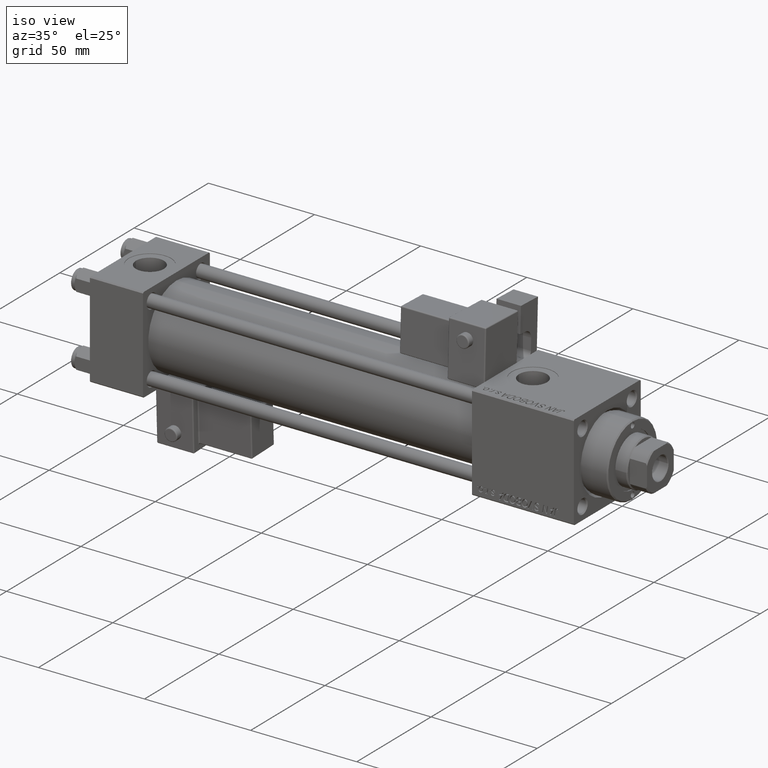
[diagram: clean part render]
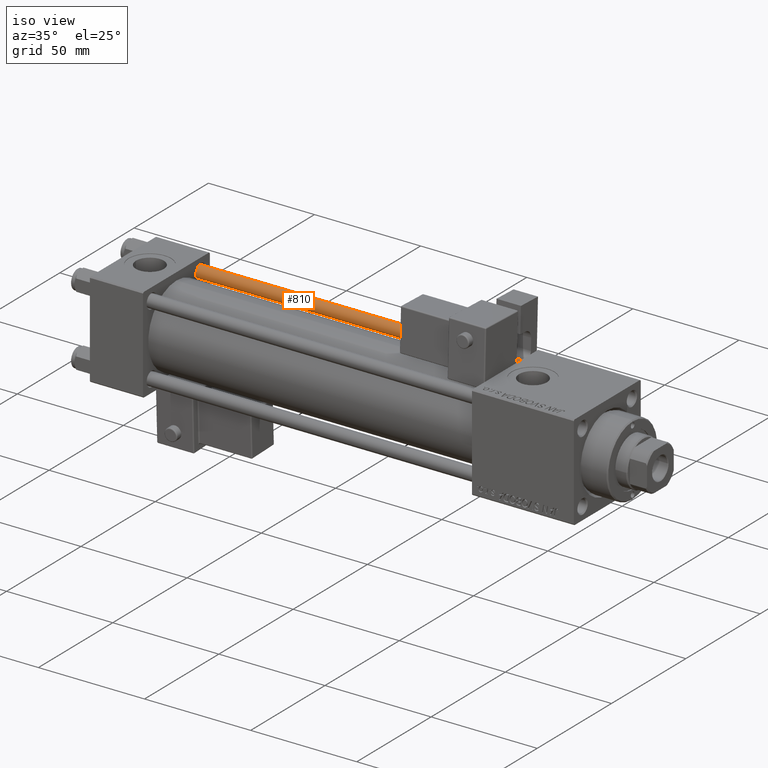
[diagram: same view with one face highlighted and labeled with its STEP entity id]
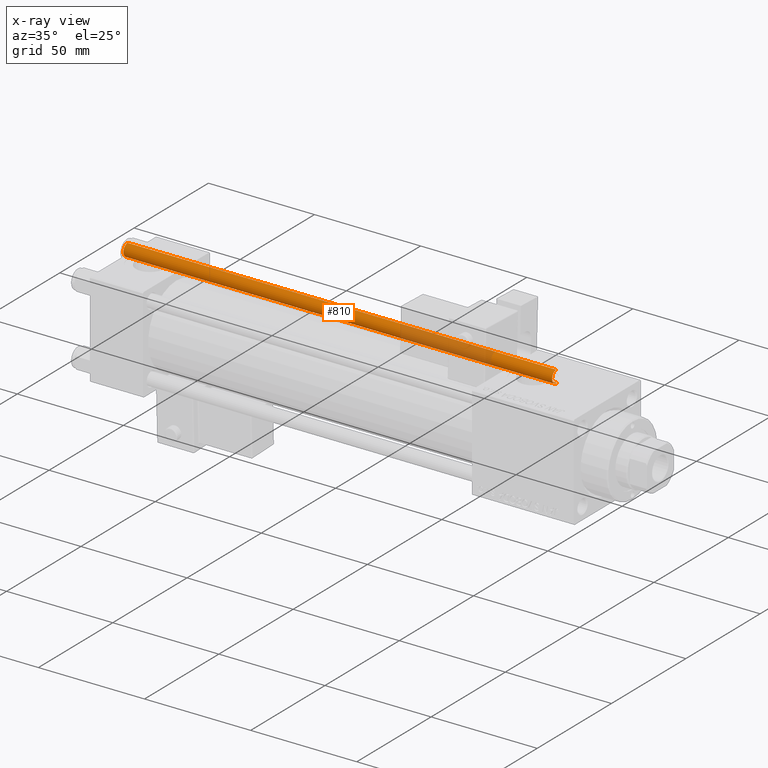
[diagram: x-ray of the same camera — body ghosted, the highlighted face saturated]
A machine part, iso view. The second image highlights one B-rep face of the part: STEP entity #810.
The next image is the same camera in x-ray: the body ghosted, the highlighted face saturated — about 21% of this face is hidden behind the body in this view.
In plain terms, the highlighted cylindrical surface (edge-blend (fillet) strip) has radius 3 mm, axis along (-1, 0, 0).
Its self-contained STEP definition (entity closure, byte-faithful):
#810 = ADVANCED_FACE ( 'NONE', ( #47053 ), #12924, .T. ) ;
#861 = VECTOR ( 'NONE', #20319, 1000.000000000000000 ) ;
#3794 = AXIS2_PLACEMENT_3D ( 'NONE', #55598, #20899, #34443 ) ;
#5326 = ORIENTED_EDGE ( 'NONE', *, *, #8403, .T. ) ;
#6738 = CARTESIAN_POINT ( 'NONE',  ( 0.000000000000000000, 0.000000000000000000, 202.5000000000000853 ) ) ;
#8403 = EDGE_CURVE ( 'NONE', #44324, #33202, #37614, .T. ) ;
#8417 = DIRECTION ( 'NONE',  ( -1.000000000000000000, 0.000000000000000000, 0.000000000000000000 ) ) ;
#9571 = CARTESIAN_POINT ( 'NONE',  ( 3.000000000000000444, 3.673940397442059868E-16, 0.5000000000001114664 ) ) ;
#12924 = CYLINDRICAL_SURFACE ( 'NONE', #38231, 3.000000000000000444 ) ;
#14222 = CARTESIAN_POINT ( 'NONE',  ( -3.000000000000000444, 0.000000000000000000, 203.0000000000000000 ) ) ;
#15217 = DIRECTION ( 'NONE',  ( 1.000000000000000000, 0.000000000000000000, 0.000000000000000000 ) ) ;
#16756 = EDGE_CURVE ( 'NONE', #44324, #17822, #50492, .T. ) ;
#17822 = VERTEX_POINT ( 'NONE', #9571 ) ;
#18032 = VERTEX_POINT ( 'NONE', #27879 ) ;
#19434 = DIRECTION ( 'NONE',  ( 0.000000000000000000, 0.000000000000000000, -1.000000000000000000 ) ) ;
#19613 = AXIS2_PLACEMENT_3D ( 'NONE', #6738, #19434, #15217 ) ;
#20319 = DIRECTION ( 'NONE',  ( -0.000000000000000000, -0.000000000000000000, -1.000000000000000000 ) ) ;
#20541 = DIRECTION ( 'NONE',  ( -0.000000000000000000, -0.000000000000000000, -1.000000000000000000 ) ) ;
#20652 = CARTESIAN_POINT ( 'NONE',  ( 3.000000000000000444, 3.673940397442059868E-16, 202.5000000000000853 ) ) ;
#20899 = DIRECTION ( 'NONE',  ( -0.000000000000000000, -0.000000000000000000, 1.000000000000000000 ) ) ;
#21102 = CARTESIAN_POINT ( 'NONE',  ( 0.000000000000000000, 0.000000000000000000, 203.0000000000000000 ) ) ;
#22948 = DIRECTION ( 'NONE',  ( -0.000000000000000000, -0.000000000000000000, -1.000000000000000000 ) ) ;
#23622 = CIRCLE ( 'NONE', #3794, 3.000000000000000444 ) ;
#25487 = EDGE_CURVE ( 'NONE', #18032, #17822, #23622, .T. ) ;
#27879 = CARTESIAN_POINT ( 'NONE',  ( -3.000000000000000444, 0.000000000000000000, 0.5000000000001114664 ) ) ;
#28291 = VECTOR ( 'NONE', #22948, 1000.000000000000000 ) ;
#30102 = EDGE_LOOP ( 'NONE', ( #38519, #5326, #46453, #38164 ) ) ;
#30868 = LINE ( 'NONE', #14222, #28291 ) ;
#33202 = VERTEX_POINT ( 'NONE', #48227 ) ;
#34443 = DIRECTION ( 'NONE',  ( 1.000000000000000000, 0.000000000000000000, 0.000000000000000000 ) ) ;
#37614 = CIRCLE ( 'NONE', #19613, 3.000000000000000444 ) ;
#38164 = ORIENTED_EDGE ( 'NONE', *, *, #25487, .T. ) ;
#38231 = AXIS2_PLACEMENT_3D ( 'NONE', #21102, #20541, #8417 ) ;
#38519 = ORIENTED_EDGE ( 'NONE', *, *, #16756, .F. ) ;
#44324 = VERTEX_POINT ( 'NONE', #20652 ) ;
#45982 = CARTESIAN_POINT ( 'NONE',  ( 3.000000000000000444, 3.673940397442059868E-16, 203.0000000000000000 ) ) ;
#46453 = ORIENTED_EDGE ( 'NONE', *, *, #51893, .T. ) ;
#47053 = FACE_OUTER_BOUND ( 'NONE', #30102, .T. ) ;
#48227 = CARTESIAN_POINT ( 'NONE',  ( -3.000000000000000444, 0.000000000000000000, 202.5000000000000853 ) ) ;
#50492 = LINE ( 'NONE', #45982, #861 ) ;
#51893 = EDGE_CURVE ( 'NONE', #33202, #18032, #30868, .T. ) ;
#55598 = CARTESIAN_POINT ( 'NONE',  ( 0.000000000000000000, 0.000000000000000000, 0.5000000000001114664 ) ) ;